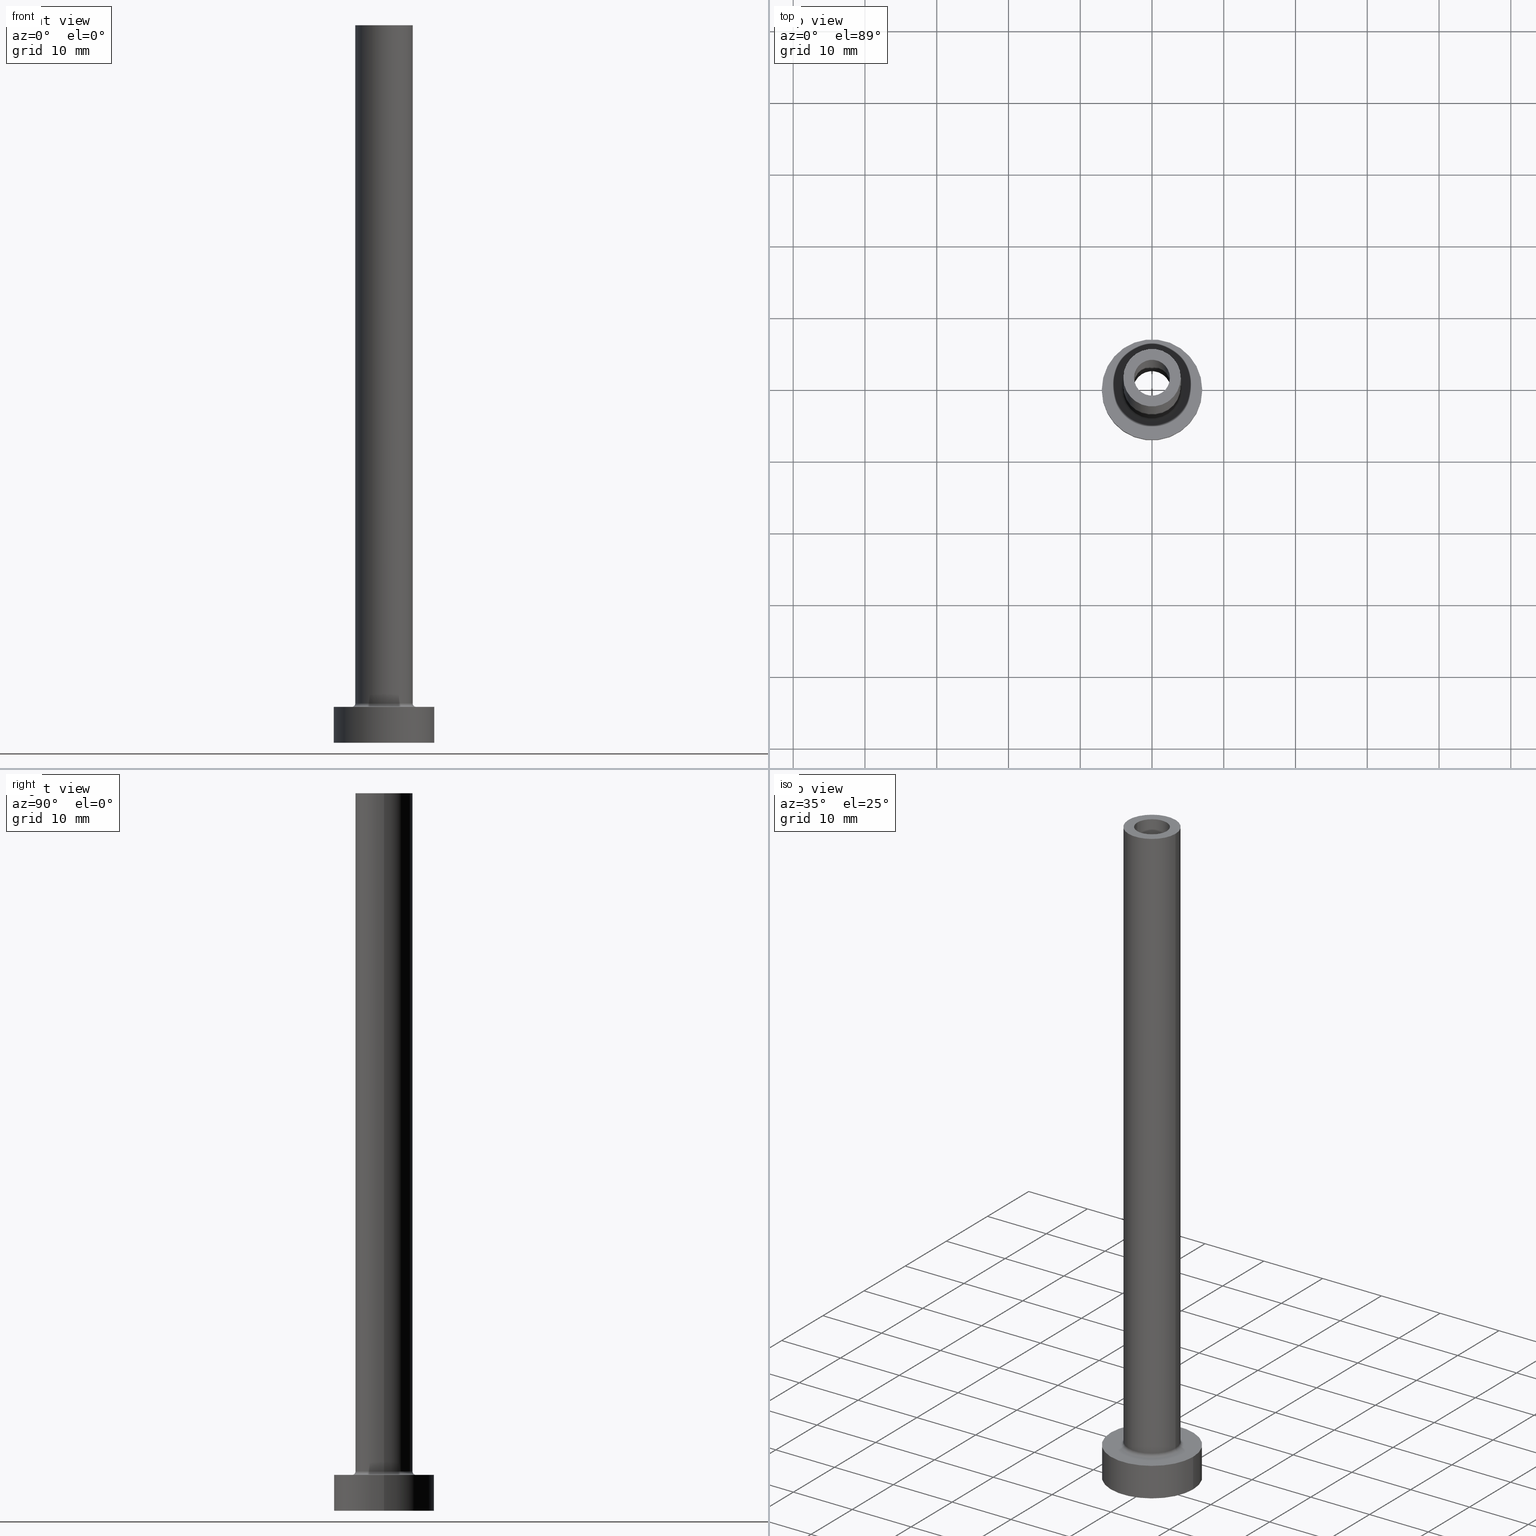
[diagram: canonical four-view strip — front | top / right | iso, engineering-drawing reading convention]
A machine part, canonical four-view strip (front | top / right | iso — engineering-drawing reading convention). The complete STEP part file that produces these views, byte-faithful:
ISO-10303-21;
HEADER;
FILE_DESCRIPTION (( 'STEP AP203' ),
    '1' );
FILE_NAME ('86c8.STEP',
    '2023-02-13T10:14:12',
    ( '' ),
    ( '' ),
    'SwSTEP 2.0',
    'SolidWorks 2019',
    '' );
FILE_SCHEMA (( 'CONFIG_CONTROL_DESIGN' ));
ENDSEC;

DATA;
#1 = DIRECTION ( 'NONE',  ( 1.000000000000000000, 0.000000000000000000, 0.000000000000000000 ) ) ;
#2 = AXIS2_PLACEMENT_3D ( 'NONE', #19, #208, #343 ) ;
#3 = EDGE_CURVE ( 'NONE', #165, #420, #121, .T. ) ;
#4 = DIRECTION ( 'NONE',  ( 1.000000000000000000, 0.000000000000000000, 0.000000000000000000 ) ) ;
#5 = LINE ( 'NONE', #232, #358 ) ;
#6 = ORIENTED_EDGE ( 'NONE', *, *, #106, .T. ) ;
#7 = AXIS2_PLACEMENT_3D ( 'NONE', #327, #429, #394 ) ;
#8 = CARTESIAN_POINT ( 'NONE',  ( 0.000000000000000000, 0.000000000000000000, 5.000000000000000000 ) ) ;
#9 = APPROVAL_DATE_TIME ( #93, #275 ) ;
#10 = VERTEX_POINT ( 'NONE', #406 ) ;
#11 = PRODUCT_DEFINITION_FORMATION_WITH_SPECIFIED_SOURCE ( 'LIBOVOLN�', '', #76, .NOT_KNOWN. ) ;
#12 = DIRECTION ( 'NONE',  ( 1.000000000000000000, 0.000000000000000000, 0.000000000000000000 ) ) ;
#13 = ORIENTED_EDGE ( 'NONE', *, *, #131, .T. ) ;
#14 = DIRECTION ( 'NONE',  ( -0.000000000000000000, -0.000000000000000000, -1.000000000000000000 ) ) ;
#15 = DIRECTION ( 'NONE',  ( 1.000000000000000000, 0.000000000000000000, 0.000000000000000000 ) ) ;
#16 = AXIS2_PLACEMENT_3D ( 'NONE', #419, #109, #72 ) ;
#17 = EDGE_CURVE ( 'NONE', #96, #338, #64, .T. ) ;
#18 = ORIENTED_EDGE ( 'NONE', *, *, #17, .F. ) ;
#19 = CARTESIAN_POINT ( 'NONE',  ( 0.000000000000000000, 0.000000000000000000, 100.0000000000000000 ) ) ;
#20 = VERTEX_POINT ( 'NONE', #375 ) ;
#21 = DIRECTION ( 'NONE',  ( 0.000000000000000000, 0.000000000000000000, 1.000000000000000000 ) ) ;
#22 = EDGE_CURVE ( 'NONE', #70, #372, #404, .T. ) ;
#23 = APPROVAL_STATUS ( 'not_yet_approved' ) ;
#24 = AXIS2_PLACEMENT_3D ( 'NONE', #301, #438, #97 ) ;
#25 = APPROVAL ( #23, 'NEUR�EN�' ) ;
#26 = CARTESIAN_POINT ( 'NONE',  ( 0.000000000000000000, 0.000000000000000000, 100.0000000000000000 ) ) ;
#27 = ORIENTED_EDGE ( 'NONE', *, *, #259, .F. ) ;
#28 = CARTESIAN_POINT ( 'NONE',  ( 0.000000000000000000, 0.000000000000000000, 100.0000000000000000 ) ) ;
#29 = ORIENTED_EDGE ( 'NONE', *, *, #67, .F. ) ;
#30 = VECTOR ( 'NONE', #63, 1000.000000000000000 ) ;
#31 = DIRECTION ( 'NONE',  ( -0.000000000000000000, -0.000000000000000000, -1.000000000000000000 ) ) ;
#32 = APPLICATION_PROTOCOL_DEFINITION ( 'international standard', 'config_control_design', 1994, #366 ) ;
#33 = ADVANCED_FACE ( 'NONE', ( #103 ), #214, .T. ) ;
#34 = CARTESIAN_POINT ( 'NONE',  ( 0.000000000000000000, 0.000000000000000000, 5.500000000000005329 ) ) ;
#35 = PRODUCT_RELATED_PRODUCT_CATEGORY ( 'detail', '', ( #76 ) ) ;
#36 = DIRECTION ( 'NONE',  ( 1.000000000000000000, 0.000000000000000000, 0.000000000000000000 ) ) ;
#37 = CIRCLE ( 'NONE', #235, 2.649999999999999911 ) ;
#38 = FACE_OUTER_BOUND ( 'NONE', #369, .T. ) ;
#39 = CIRCLE ( 'NONE', #346, 0.5000000000000004441 ) ;
#40 = EDGE_LOOP ( 'NONE', ( #319, #312, #446, #459 ) ) ;
#41 = EDGE_CURVE ( 'NONE', #228, #180, #123, .T. ) ;
#42 = DIRECTION ( 'NONE',  ( 0.000000000000000000, 0.000000000000000000, 1.000000000000000000 ) ) ;
#43 = CARTESIAN_POINT ( 'NONE',  ( -4.000000000000000000, 0.000000000000000000, 5.500000000000005329 ) ) ;
#44 = DIRECTION ( 'NONE',  ( 0.000000000000000000, 0.000000000000000000, -1.000000000000000000 ) ) ;
#45 = AXIS2_PLACEMENT_3D ( 'NONE', #355, #428, #325 ) ;
#46 = EDGE_LOOP ( 'NONE', ( #405, #86, #411, #50 ) ) ;
#47 = CARTESIAN_POINT ( 'NONE',  ( -2.649999999999999911, 0.000000000000000000, 55.00000000000000711 ) ) ;
#48 =( GEOMETRIC_REPRESENTATION_CONTEXT ( 3 ) GLOBAL_UNCERTAINTY_ASSIGNED_CONTEXT ( ( #119 ) ) GLOBAL_UNIT_ASSIGNED_CONTEXT ( ( #283, #263, #425 ) ) REPRESENTATION_CONTEXT ( 'NONE', 'WORKASPACE' ) );
#49 = APPROVAL_ROLE ( '' ) ;
#50 = ORIENTED_EDGE ( 'NONE', *, *, #393, .F. ) ;
#51 = EDGE_CURVE ( 'NONE', #165, #70, #215, .T. ) ;
#52 = DIRECTION ( 'NONE',  ( 1.000000000000000000, 0.000000000000000000, 0.000000000000000000 ) ) ;
#53 = AXIS2_PLACEMENT_3D ( 'NONE', #226, #120, #1 ) ;
#54 = DIRECTION ( 'NONE',  ( 1.000000000000000000, 0.000000000000000000, 0.000000000000000000 ) ) ;
#55 = LINE ( 'NONE', #198, #389 ) ;
#56 = AXIS2_PLACEMENT_3D ( 'NONE', #80, #271, #353 ) ;
#57 = CARTESIAN_POINT ( 'NONE',  ( 0.000000000000000000, 0.000000000000000000, 0.000000000000000000 ) ) ;
#58 = EDGE_CURVE ( 'NONE', #147, #155, #98, .T. ) ;
#59 = DIRECTION ( 'NONE',  ( 0.000000000000000000, 0.000000000000000000, 1.000000000000000000 ) ) ;
#60 = DIRECTION ( 'NONE',  ( 1.000000000000000000, 0.000000000000000000, 0.000000000000000000 ) ) ;
#61 = ADVANCED_FACE ( 'NONE', ( #117, #236 ), #251, .F. ) ;
#62 = APPROVAL_ROLE ( '' ) ;
#63 = DIRECTION ( 'NONE',  ( -0.000000000000000000, -0.000000000000000000, -1.000000000000000000 ) ) ;
#64 = CIRCLE ( 'NONE', #412, 4.500000000000000888 ) ;
#65 = EDGE_LOOP ( 'NONE', ( #29, #87 ) ) ;
#66 = FACE_BOUND ( 'NONE', #350, .T. ) ;
#67 = EDGE_CURVE ( 'NONE', #288, #440, #254, .T. ) ;
#68 = DIRECTION ( 'NONE',  ( -1.000000000000000000, 0.000000000000000000, 0.000000000000000000 ) ) ;
#69 = CALENDAR_DATE ( 2023, 13, 2 ) ;
#70 = VERTEX_POINT ( 'NONE', #258 ) ;
#71 = DIRECTION ( 'NONE',  ( 0.000000000000000000, 0.000000000000000000, 1.000000000000000000 ) ) ;
#72 = DIRECTION ( 'NONE',  ( 1.000000000000000000, 0.000000000000000000, 0.000000000000000000 ) ) ;
#73 = ORIENTED_EDGE ( 'NONE', *, *, #160, .T. ) ;
#74 = ADVANCED_FACE ( 'NONE', ( #66, #413 ), #148, .T. ) ;
#75 = VECTOR ( 'NONE', #14, 1000.000000000000000 ) ;
#76 = PRODUCT ( '86c8', '86c8', '', ( #296 ) ) ;
#77 = AXIS2_PLACEMENT_3D ( 'NONE', #211, #31, #68 ) ;
#78 = ADVANCED_FACE ( 'NONE', ( #315 ), #455, .F. ) ;
#79 = DIRECTION ( 'NONE',  ( 0.000000000000000000, 0.000000000000000000, -1.000000000000000000 ) ) ;
#80 = CARTESIAN_POINT ( 'NONE',  ( 0.000000000000000000, 0.000000000000000000, 0.000000000000000000 ) ) ;
#81 = DIRECTION ( 'NONE',  ( -1.000000000000000000, 0.000000000000000000, 0.000000000000000000 ) ) ;
#82 = CC_DESIGN_PERSON_AND_ORGANIZATION_ASSIGNMENT ( #124, #269, ( #76 ) ) ;
#83 = FACE_OUTER_BOUND ( 'NONE', #321, .T. ) ;
#84 = PERSON_AND_ORGANIZATION ( #383, #432 ) ;
#85 = DIRECTION ( 'NONE',  ( -0.000000000000000000, -0.000000000000000000, -1.000000000000000000 ) ) ;
#86 = ORIENTED_EDGE ( 'NONE', *, *, #388, .F. ) ;
#87 = ORIENTED_EDGE ( 'NONE', *, *, #231, .F. ) ;
#88 = CARTESIAN_POINT ( 'NONE',  ( 0.000000000000000000, 0.000000000000000000, 62.49533188057741739 ) ) ;
#89 = EDGE_LOOP ( 'NONE', ( #449, #130, #175, #13 ) ) ;
#90 = CARTESIAN_POINT ( 'NONE',  ( 4.000000000000000000, 4.898587196589412829E-16, 100.0000000000000000 ) ) ;
#91 = CIRCLE ( 'NONE', #2, 2.500000000000000000 ) ;
#92 = DIRECTION ( 'NONE',  ( 1.000000000000000000, 0.000000000000000000, 0.000000000000000000 ) ) ;
#93 = DATE_AND_TIME ( #200, #317 ) ;
#94 = FACE_OUTER_BOUND ( 'NONE', #46, .T. ) ;
#95 = DIRECTION ( 'NONE',  ( 0.000000000000000000, 0.000000000000000000, 1.000000000000000000 ) ) ;
#96 = VERTEX_POINT ( 'NONE', #418 ) ;
#97 = DIRECTION ( 'NONE',  ( 1.000000000000000000, 0.000000000000000000, 0.000000000000000000 ) ) ;
#98 = CIRCLE ( 'NONE', #337, 4.000000000000000000 ) ;
#99 = EDGE_CURVE ( 'NONE', #20, #238, #157, .T. ) ;
#100 = DIRECTION ( 'NONE',  ( 0.000000000000000000, 0.000000000000000000, 1.000000000000000000 ) ) ;
#101 = DIRECTION ( 'NONE',  ( 1.000000000000000000, 0.000000000000000000, -0.000000000000000000 ) ) ;
#102 = ORIENTED_EDGE ( 'NONE', *, *, #393, .T. ) ;
#103 = FACE_OUTER_BOUND ( 'NONE', #216, .T. ) ;
#104 = AXIS2_PLACEMENT_3D ( 'NONE', #376, #71, #176 ) ;
#105 = CARTESIAN_POINT ( 'NONE',  ( 0.000000000000000000, 0.000000000000000000, 55.00000000000000711 ) ) ;
#106 = EDGE_CURVE ( 'NONE', #180, #228, #261, .T. ) ;
#107 = FACE_OUTER_BOUND ( 'NONE', #437, .T. ) ;
#108 = APPROVAL_DATE_TIME ( #316, #25 ) ;
#109 = DIRECTION ( 'NONE',  ( 0.000000000000000000, 0.000000000000000000, 1.000000000000000000 ) ) ;
#110 = ORIENTED_EDGE ( 'NONE', *, *, #264, .T. ) ;
#111 = PERSON_AND_ORGANIZATION ( #383, #432 ) ;
#112 = DIRECTION ( 'NONE',  ( -0.000000000000000000, -0.000000000000000000, -1.000000000000000000 ) ) ;
#113 = ADVANCED_FACE ( 'NONE', ( #295, #83 ), #262, .T. ) ;
#114 = AXIS2_PLACEMENT_3D ( 'NONE', #141, #287, #386 ) ;
#115 = EDGE_CURVE ( 'NONE', #390, #10, #218, .T. ) ;
#116 = DIRECTION ( 'NONE',  ( 1.000000000000000000, 0.000000000000000000, 0.000000000000000000 ) ) ;
#117 = FACE_BOUND ( 'NONE', #260, .T. ) ;
#118 = CC_DESIGN_APPROVAL ( #25, ( #199 ) ) ;
#119 = UNCERTAINTY_MEASURE_WITH_UNIT (LENGTH_MEASURE( 1.000000000000000082E-05 ), #283, 'distance_accuracy_value', 'NONE');
#120 = DIRECTION ( 'NONE',  ( -0.000000000000000000, -0.000000000000000000, -1.000000000000000000 ) ) ;
#121 = CIRCLE ( 'NONE', #133, 7.000000000000000000 ) ;
#122 = DIRECTION ( 'NONE',  ( -0.000000000000000000, -0.000000000000000000, -1.000000000000000000 ) ) ;
#123 = CIRCLE ( 'NONE', #16, 4.000000000000000000 ) ;
#124 = PERSON_AND_ORGANIZATION ( #383, #432 ) ;
#125 = CARTESIAN_POINT ( 'NONE',  ( 4.000000000000000000, 4.898587196589412829E-16, 5.500000000000005329 ) ) ;
#126 = DIRECTION ( 'NONE',  ( 1.000000000000000000, 0.000000000000000000, -0.000000000000000000 ) ) ;
#127 = COORDINATED_UNIVERSAL_TIME_OFFSET ( 1, 0, .AHEAD. ) ;
#128 = LINE ( 'NONE', #361, #363 ) ;
#129 = DIRECTION ( 'NONE',  ( -0.000000000000000000, -0.000000000000000000, -1.000000000000000000 ) ) ;
#130 = ORIENTED_EDGE ( 'NONE', *, *, #231, .T. ) ;
#131 = EDGE_CURVE ( 'NONE', #387, #458, #313, .T. ) ;
#132 = CYLINDRICAL_SURFACE ( 'NONE', #281, 2.649999999999999911 ) ;
#133 = AXIS2_PLACEMENT_3D ( 'NONE', #447, #95, #54 ) ;
#134 = PERSON_AND_ORGANIZATION_ROLE ( 'creator' ) ;
#135 = CARTESIAN_POINT ( 'NONE',  ( 0.000000000000000000, 0.000000000000000000, 62.49533188057741739 ) ) ;
#136 = ADVANCED_FACE ( 'NONE', ( #291 ), #219, .F. ) ;
#137 = CALENDAR_DATE ( 2023, 13, 2 ) ;
#138 = ORIENTED_EDGE ( 'NONE', *, *, #143, .F. ) ;
#139 = AXIS2_PLACEMENT_3D ( 'NONE', #158, #357, #36 ) ;
#140 = CC_DESIGN_PERSON_AND_ORGANIZATION_ASSIGNMENT ( #451, #134, ( #326 ) ) ;
#141 = CARTESIAN_POINT ( 'NONE',  ( 0.000000000000000000, 0.000000000000000000, 5.000000000000000000 ) ) ;
#142 = ADVANCED_FACE ( 'NONE', ( #38 ), #379, .F. ) ;
#143 = EDGE_CURVE ( 'NONE', #10, #20, #163, .T. ) ;
#144 = DIRECTION ( 'NONE',  ( 0.000000000000000000, 0.000000000000000000, 1.000000000000000000 ) ) ;
#145 = CLOSED_SHELL ( 'NONE', ( #78, #187, #142, #454, #33, #431, #113, #352, #444, #74, #257, #433, #61, #136 ) ) ;
#146 = ORIENTED_EDGE ( 'NONE', *, *, #303, .T. ) ;
#147 = VERTEX_POINT ( 'NONE', #43 ) ;
#148 = PLANE ( 'NONE',  #183 ) ;
#149 = EDGE_CURVE ( 'NONE', #390, #238, #297, .T. ) ;
#150 = CARTESIAN_POINT ( 'NONE',  ( 0.000000000000000000, 0.000000000000000000, 100.0000000000000000 ) ) ;
#151 = ORIENTED_EDGE ( 'NONE', *, *, #17, .T. ) ;
#152 = EDGE_LOOP ( 'NONE', ( #205, #253, #168, #308 ) ) ;
#153 = DIRECTION ( 'NONE',  ( 1.000000000000000000, 0.000000000000000000, 0.000000000000000000 ) ) ;
#154 = ORIENTED_EDGE ( 'NONE', *, *, #41, .T. ) ;
#155 = VERTEX_POINT ( 'NONE', #125 ) ;
#156 = DIRECTION ( 'NONE',  ( 0.000000000000000000, 0.000000000000000000, 1.000000000000000000 ) ) ;
#157 = CIRCLE ( 'NONE', #396, 2.500000000000000000 ) ;
#158 = CARTESIAN_POINT ( 'NONE',  ( 0.000000000000000000, 0.000000000000000000, 100.0000000000000000 ) ) ;
#159 = DIRECTION ( 'NONE',  ( 0.000000000000000000, -1.000000000000000000, 0.000000000000000000 ) ) ;
#160 = EDGE_CURVE ( 'NONE', #420, #372, #128, .T. ) ;
#161 = DIRECTION ( 'NONE',  ( 1.000000000000000000, 0.000000000000000000, 0.000000000000000000 ) ) ;
#162 = CARTESIAN_POINT ( 'NONE',  ( -7.000000000000000000, 0.000000000000000000, 0.000000000000000000 ) ) ;
#163 = LINE ( 'NONE', #293, #349 ) ;
#164 = DIRECTION ( 'NONE',  ( 0.000000000000000000, 0.000000000000000000, -1.000000000000000000 ) ) ;
#165 = VERTEX_POINT ( 'NONE', #190 ) ;
#166 = SECURITY_CLASSIFICATION_LEVEL ( 'unclassified' ) ;
#167 = LOCAL_TIME ( 11, 14, 12.00000000000000000, #237 ) ;
#168 = ORIENTED_EDGE ( 'NONE', *, *, #259, .T. ) ;
#169 = CARTESIAN_POINT ( 'NONE',  ( 0.000000000000000000, 0.000000000000000000, 55.00000000000000711 ) ) ;
#170 = APPROVAL ( #360, 'NEUR�EN�' ) ;
#171 = CARTESIAN_POINT ( 'NONE',  ( -4.500000000000000888, 5.510910596163088569E-16, 5.000000000000002665 ) ) ;
#172 = CIRCLE ( 'NONE', #417, 4.000000000000000000 ) ;
#173 = EDGE_LOOP ( 'NONE', ( #151, #102 ) ) ;
#174 = LINE ( 'NONE', #90, #75 ) ;
#175 = ORIENTED_EDGE ( 'NONE', *, *, #416, .T. ) ;
#176 = DIRECTION ( 'NONE',  ( 1.000000000000000000, 0.000000000000000000, -0.000000000000000000 ) ) ;
#177 = PLANE ( 'NONE',  #206 ) ;
#178 = COORDINATED_UNIVERSAL_TIME_OFFSET ( 1, 0, .AHEAD. ) ;
#179 = LOCAL_TIME ( 11, 14, 12.00000000000000000, #127 ) ;
#180 = VERTEX_POINT ( 'NONE', #329 ) ;
#181 = DIRECTION ( 'NONE',  ( 0.000000000000000000, 0.000000000000000000, -1.000000000000000000 ) ) ;
#182 = ORIENTED_EDGE ( 'NONE', *, *, #264, .F. ) ;
#183 = AXIS2_PLACEMENT_3D ( 'NONE', #26, #144, #101 ) ;
#184 = DIRECTION ( 'NONE',  ( -0.000000000000000000, -0.000000000000000000, -1.000000000000000000 ) ) ;
#185 = ADVANCED_BREP_SHAPE_REPRESENTATION ( '86c8', ( #278, #56 ), #48 ) ;
#186 = EDGE_LOOP ( 'NONE', ( #314, #322, #302, #213 ) ) ;
#187 = ADVANCED_FACE ( 'NONE', ( #450 ), #132, .F. ) ;
#188 = CARTESIAN_POINT ( 'NONE',  ( 0.000000000000000000, 0.000000000000000000, 0.000000000000000000 ) ) ;
#189 = CC_DESIGN_DATE_AND_TIME_ASSIGNMENT ( #196, #368, ( #326 ) ) ;
#190 = CARTESIAN_POINT ( 'NONE',  ( 7.000000000000000000, 8.572527594031473190E-16, 5.000000000000000000 ) ) ;
#191 = DIRECTION ( 'NONE',  ( -1.000000000000000000, 0.000000000000000000, 0.000000000000000000 ) ) ;
#192 = TOROIDAL_SURFACE ( 'NONE', #24, 4.500000000000000888, 0.5000000000000000000 ) ;
#193 = COORDINATED_UNIVERSAL_TIME_OFFSET ( 1, 0, .AHEAD. ) ;
#194 = EDGE_LOOP ( 'NONE', ( #340, #381, #73, #242 ) ) ;
#195 = CC_DESIGN_PERSON_AND_ORGANIZATION_ASSIGNMENT ( #273, #401, ( #199 ) ) ;
#196 = DATE_AND_TIME ( #137, #246 ) ;
#197 = EDGE_LOOP ( 'NONE', ( #138, #110, #267, #335 ) ) ;
#198 = CARTESIAN_POINT ( 'NONE',  ( 2.649999999999999911, 3.245314017740485962E-16, 62.49533188057741739 ) ) ;
#199 = SECURITY_CLASSIFICATION ( '', '', #166 ) ;
#200 = CALENDAR_DATE ( 2023, 13, 2 ) ;
#201 = ORIENTED_EDGE ( 'NONE', *, *, #415, .T. ) ;
#202 = DIRECTION ( 'NONE',  ( 0.000000000000000000, 0.000000000000000000, -1.000000000000000000 ) ) ;
#203 = AXIS2_PLACEMENT_3D ( 'NONE', #28, #181, #285 ) ;
#204 = PERSON_AND_ORGANIZATION_ROLE ( 'design_supplier' ) ;
#205 = ORIENTED_EDGE ( 'NONE', *, *, #67, .T. ) ;
#206 = AXIS2_PLACEMENT_3D ( 'NONE', #318, #356, #126 ) ;
#207 = ORIENTED_EDGE ( 'NONE', *, *, #282, .T. ) ;
#208 = DIRECTION ( 'NONE',  ( 0.000000000000000000, 0.000000000000000000, 1.000000000000000000 ) ) ;
#209 = AXIS2_PLACEMENT_3D ( 'NONE', #290, #359, #265 ) ;
#210 = CARTESIAN_POINT ( 'NONE',  ( -2.500000000000000000, 0.000000000000000000, 55.00000000000000711 ) ) ;
#211 = CARTESIAN_POINT ( 'NONE',  ( 0.000000000000000000, 0.000000000000000000, 100.0000000000000000 ) ) ;
#212 = VECTOR ( 'NONE', #164, 1000.000000000000000 ) ;
#213 = ORIENTED_EDGE ( 'NONE', *, *, #149, .F. ) ;
#214 = CYLINDRICAL_SURFACE ( 'NONE', #114, 7.000000000000000000 ) ;
#215 = LINE ( 'NONE', #378, #30 ) ;
#216 = EDGE_LOOP ( 'NONE', ( #439, #348, #306, #279 ) ) ;
#217 = CC_DESIGN_DATE_AND_TIME_ASSIGNMENT ( #380, #284, ( #199 ) ) ;
#218 = CIRCLE ( 'NONE', #139, 2.500000000000000000 ) ;
#219 = CYLINDRICAL_SURFACE ( 'NONE', #330, 2.500000000000000000 ) ;
#220 = EDGE_CURVE ( 'NONE', #372, #70, #243, .T. ) ;
#221 = ORIENTED_EDGE ( 'NONE', *, *, #414, .F. ) ;
#222 = DIRECTION ( 'NONE',  ( 0.000000000000000000, 0.000000000000000000, 1.000000000000000000 ) ) ;
#223 = DIRECTION ( 'NONE',  ( 1.000000000000000000, 0.000000000000000000, 0.000000000000000000 ) ) ;
#224 = EDGE_CURVE ( 'NONE', #228, #155, #174, .T. ) ;
#225 = CIRCLE ( 'NONE', #53, 4.500000000000000888 ) ;
#226 = CARTESIAN_POINT ( 'NONE',  ( 0.000000000000000000, 0.000000000000000000, 5.000000000000000000 ) ) ;
#227 = DIRECTION ( 'NONE',  ( 0.000000000000000000, 0.000000000000000000, -1.000000000000000000 ) ) ;
#228 = VERTEX_POINT ( 'NONE', #441 ) ;
#229 = CARTESIAN_POINT ( 'NONE',  ( 0.000000000000000000, 0.000000000000000000, 100.0000000000000000 ) ) ;
#230 = DIRECTION ( 'NONE',  ( 0.000000000000000000, 0.000000000000000000, -1.000000000000000000 ) ) ;
#231 = EDGE_CURVE ( 'NONE', #440, #288, #37, .T. ) ;
#232 = CARTESIAN_POINT ( 'NONE',  ( -4.000000000000000000, 0.000000000000000000, 100.0000000000000000 ) ) ;
#233 = PERSON_AND_ORGANIZATION_ROLE ( 'creator' ) ;
#234 = ORIENTED_EDGE ( 'NONE', *, *, #224, .F. ) ;
#235 = AXIS2_PLACEMENT_3D ( 'NONE', #169, #373, #309 ) ;
#236 = FACE_OUTER_BOUND ( 'NONE', #65, .T. ) ;
#237 = COORDINATED_UNIVERSAL_TIME_OFFSET ( 1, 0, .AHEAD. ) ;
#238 = VERTEX_POINT ( 'NONE', #210 ) ;
#239 = DIRECTION ( 'NONE',  ( -1.000000000000000000, 1.224646799147351482E-16, 0.000000000000000000 ) ) ;
#240 = CARTESIAN_POINT ( 'NONE',  ( 0.000000000000000000, 0.000000000000000000, 5.000000000000000000 ) ) ;
#241 = PERSON_AND_ORGANIZATION ( #383, #432 ) ;
#242 = ORIENTED_EDGE ( 'NONE', *, *, #220, .T. ) ;
#243 = CIRCLE ( 'NONE', #423, 7.000000000000000000 ) ;
#244 = ORIENTED_EDGE ( 'NONE', *, *, #58, .F. ) ;
#245 = CARTESIAN_POINT ( 'NONE',  ( 0.000000000000000000, 0.000000000000000000, 0.000000000000000000 ) ) ;
#246 = LOCAL_TIME ( 11, 14, 12.00000000000000000, #307 ) ;
#247 = DIRECTION ( 'NONE',  ( -0.000000000000000000, -0.000000000000000000, -1.000000000000000000 ) ) ;
#248 = EDGE_CURVE ( 'NONE', #440, #458, #55, .T. ) ;
#249 = DIRECTION ( 'NONE',  ( 0.000000000000000000, 0.000000000000000000, -1.000000000000000000 ) ) ;
#250 = CC_DESIGN_SECURITY_CLASSIFICATION ( #199, ( #11 ) ) ;
#251 = PLANE ( 'NONE',  #104 ) ;
#252 = APPLICATION_CONTEXT ( 'configuration controlled 3d designs of mechanical parts and assemblies' ) ;
#253 = ORIENTED_EDGE ( 'NONE', *, *, #248, .T. ) ;
#254 = CIRCLE ( 'NONE', #374, 2.649999999999999911 ) ;
#255 = CYLINDRICAL_SURFACE ( 'NONE', #77, 4.000000000000000000 ) ;
#256 = CARTESIAN_POINT ( 'NONE',  ( 0.000000000000000000, 0.000000000000000000, 5.500000000000005329 ) ) ;
#257 = ADVANCED_FACE ( 'NONE', ( #94 ), #192, .F. ) ;
#258 = CARTESIAN_POINT ( 'NONE',  ( 7.000000000000000000, 8.572527594031473190E-16, 0.000000000000000000 ) ) ;
#259 = EDGE_CURVE ( 'NONE', #458, #387, #395, .T. ) ;
#260 = EDGE_LOOP ( 'NONE', ( #201, #345 ) ) ;
#261 = CIRCLE ( 'NONE', #266, 4.000000000000000000 ) ;
#262 = PLANE ( 'NONE',  #45 ) ;
#263 =( NAMED_UNIT ( * ) PLANE_ANGLE_UNIT ( ) SI_UNIT ( $, .RADIAN. ) );
#264 = EDGE_CURVE ( 'NONE', #10, #390, #91, .T. ) ;
#265 = DIRECTION ( 'NONE',  ( 1.000000000000000000, 0.000000000000000000, 0.000000000000000000 ) ) ;
#266 = AXIS2_PLACEMENT_3D ( 'NONE', #229, #156, #223 ) ;
#267 = ORIENTED_EDGE ( 'NONE', *, *, #149, .T. ) ;
#268 = CARTESIAN_POINT ( 'NONE',  ( -2.649999999999999911, 0.000000000000000000, 0.000000000000000000 ) ) ;
#269 = PERSON_AND_ORGANIZATION_ROLE ( 'design_owner' ) ;
#270 = CARTESIAN_POINT ( 'NONE',  ( -2.500000000000000000, 0.000000000000000000, 100.0000000000000000 ) ) ;
#271 = DIRECTION ( 'NONE',  ( 0.000000000000000000, 0.000000000000000000, 1.000000000000000000 ) ) ;
#272 = FACE_OUTER_BOUND ( 'NONE', #194, .T. ) ;
#273 = PERSON_AND_ORGANIZATION ( #383, #432 ) ;
#274 = EDGE_LOOP ( 'NONE', ( #300, #408 ) ) ;
#275 = APPROVAL ( #436, 'NEUR�EN�' ) ;
#276 = CIRCLE ( 'NONE', #443, 0.5000000000000004441 ) ;
#277 = EDGE_LOOP ( 'NONE', ( #311, #27 ) ) ;
#278 = MANIFOLD_SOLID_BREP ( 'Odebrat vysunut�m4', #145 ) ;
#279 = ORIENTED_EDGE ( 'NONE', *, *, #160, .F. ) ;
#280 = ORIENTED_EDGE ( 'NONE', *, *, #58, .T. ) ;
#281 = AXIS2_PLACEMENT_3D ( 'NONE', #135, #249, #370 ) ;
#282 = EDGE_CURVE ( 'NONE', #147, #338, #276, .T. ) ;
#283 =( LENGTH_UNIT ( ) NAMED_UNIT ( * ) SI_UNIT ( .MILLI., .METRE. ) );
#284 = DATE_TIME_ROLE ( 'classification_date' ) ;
#285 = DIRECTION ( 'NONE',  ( -1.000000000000000000, 0.000000000000000000, 0.000000000000000000 ) ) ;
#286 = CIRCLE ( 'NONE', #304, 7.000000000000000000 ) ;
#287 = DIRECTION ( 'NONE',  ( -0.000000000000000000, -0.000000000000000000, -1.000000000000000000 ) ) ;
#288 = VERTEX_POINT ( 'NONE', #47 ) ;
#289 = AXIS2_PLACEMENT_3D ( 'NONE', #245, #336, #52 ) ;
#290 = CARTESIAN_POINT ( 'NONE',  ( 0.000000000000000000, 0.000000000000000000, 55.00000000000000711 ) ) ;
#291 = FACE_OUTER_BOUND ( 'NONE', #197, .T. ) ;
#292 = CARTESIAN_POINT ( 'NONE',  ( -7.000000000000000000, 0.000000000000000000, 5.000000000000000000 ) ) ;
#293 = CARTESIAN_POINT ( 'NONE',  ( 2.500000000000000000, 3.061616997868382648E-16, 100.0000000000000000 ) ) ;
#294 = ORIENTED_EDGE ( 'NONE', *, *, #3, .T. ) ;
#295 = FACE_BOUND ( 'NONE', #173, .T. ) ;
#296 = MECHANICAL_CONTEXT ( 'NONE', #366, 'mechanical' ) ;
#297 = LINE ( 'NONE', #430, #212 ) ;
#298 = APPROVAL_ROLE ( '' ) ;
#299 = CYLINDRICAL_SURFACE ( 'NONE', #323, 7.000000000000000000 ) ;
#300 = ORIENTED_EDGE ( 'NONE', *, *, #220, .F. ) ;
#301 = CARTESIAN_POINT ( 'NONE',  ( 0.000000000000000000, 0.000000000000000000, 5.500000000000005329 ) ) ;
#302 = ORIENTED_EDGE ( 'NONE', *, *, #415, .F. ) ;
#303 = EDGE_CURVE ( 'NONE', #420, #165, #286, .T. ) ;
#304 = AXIS2_PLACEMENT_3D ( 'NONE', #334, #21, #15 ) ;
#305 = DESIGN_CONTEXT ( 'detailed design', #252, 'design' ) ;
#306 = ORIENTED_EDGE ( 'NONE', *, *, #22, .T. ) ;
#307 = COORDINATED_UNIVERSAL_TIME_OFFSET ( 1, 0, .AHEAD. ) ;
#308 = ORIENTED_EDGE ( 'NONE', *, *, #416, .F. ) ;
#309 = DIRECTION ( 'NONE',  ( 1.000000000000000000, 0.000000000000000000, 0.000000000000000000 ) ) ;
#310 = DATE_AND_TIME ( #445, #179 ) ;
#311 = ORIENTED_EDGE ( 'NONE', *, *, #131, .F. ) ;
#312 = ORIENTED_EDGE ( 'NONE', *, *, #224, .T. ) ;
#313 = CIRCLE ( 'NONE', #453, 2.649999999999999911 ) ;
#314 = ORIENTED_EDGE ( 'NONE', *, *, #115, .T. ) ;
#315 = FACE_OUTER_BOUND ( 'NONE', #186, .T. ) ;
#316 = DATE_AND_TIME ( #342, #435 ) ;
#317 = LOCAL_TIME ( 11, 14, 12.00000000000000000, #193 ) ;
#318 = CARTESIAN_POINT ( 'NONE',  ( 0.000000000000000000, 0.000000000000000000, 0.000000000000000000 ) ) ;
#319 = ORIENTED_EDGE ( 'NONE', *, *, #41, .F. ) ;
#320 = PRODUCT_DEFINITION_SHAPE ( 'NONE', 'NONE',  #326 ) ;
#321 = EDGE_LOOP ( 'NONE', ( #146, #294 ) ) ;
#322 = ORIENTED_EDGE ( 'NONE', *, *, #143, .T. ) ;
#323 = AXIS2_PLACEMENT_3D ( 'NONE', #8, #129, #362 ) ;
#324 = DIRECTION ( 'NONE',  ( -1.000000000000000000, 0.000000000000000000, 0.000000000000000000 ) ) ;
#325 = DIRECTION ( 'NONE',  ( 1.000000000000000000, 0.000000000000000000, -0.000000000000000000 ) ) ;
#326 = PRODUCT_DEFINITION ( 'NEZN�M�', '', #11, #305 ) ;
#327 = CARTESIAN_POINT ( 'NONE',  ( 0.000000000000000000, 0.000000000000000000, 5.500000000000005329 ) ) ;
#328 = CARTESIAN_POINT ( 'NONE',  ( 0.000000000000000000, 0.000000000000000000, 100.0000000000000000 ) ) ;
#329 = CARTESIAN_POINT ( 'NONE',  ( -4.000000000000000000, 0.000000000000000000, 100.0000000000000000 ) ) ;
#330 = AXIS2_PLACEMENT_3D ( 'NONE', #328, #426, #81 ) ;
#331 = CC_DESIGN_APPROVAL ( #170, ( #326 ) ) ;
#332 = CARTESIAN_POINT ( 'NONE',  ( 2.649999999999999911, 3.245314017740485962E-16, 55.00000000000000711 ) ) ;
#333 = PERSON_AND_ORGANIZATION ( #383, #432 ) ;
#334 = CARTESIAN_POINT ( 'NONE',  ( 0.000000000000000000, 0.000000000000000000, 5.000000000000000000 ) ) ;
#335 = ORIENTED_EDGE ( 'NONE', *, *, #99, .F. ) ;
#336 = DIRECTION ( 'NONE',  ( -0.000000000000000000, -0.000000000000000000, -1.000000000000000000 ) ) ;
#337 = AXIS2_PLACEMENT_3D ( 'NONE', #256, #347, #4 ) ;
#338 = VERTEX_POINT ( 'NONE', #171 ) ;
#339 = FACE_BOUND ( 'NONE', #277, .T. ) ;
#340 = ORIENTED_EDGE ( 'NONE', *, *, #51, .F. ) ;
#341 = DIRECTION ( 'NONE',  ( 1.224646799147353207E-16, 1.000000000000000000, -0.000000000000000000 ) ) ;
#342 = CALENDAR_DATE ( 2023, 13, 2 ) ;
#343 = DIRECTION ( 'NONE',  ( 1.000000000000000000, 0.000000000000000000, 0.000000000000000000 ) ) ;
#344 = CYLINDRICAL_SURFACE ( 'NONE', #448, 4.000000000000000000 ) ;
#345 = ORIENTED_EDGE ( 'NONE', *, *, #99, .T. ) ;
#346 = AXIS2_PLACEMENT_3D ( 'NONE', #398, #159, #230 ) ;
#347 = DIRECTION ( 'NONE',  ( 0.000000000000000000, 0.000000000000000000, 1.000000000000000000 ) ) ;
#348 = ORIENTED_EDGE ( 'NONE', *, *, #51, .T. ) ;
#349 = VECTOR ( 'NONE', #227, 1000.000000000000000 ) ;
#350 = EDGE_LOOP ( 'NONE', ( #382, #182 ) ) ;
#351 = EDGE_LOOP ( 'NONE', ( #6, #154 ) ) ;
#352 = ADVANCED_FACE ( 'NONE', ( #339, #422 ), #177, .F. ) ;
#353 = DIRECTION ( 'NONE',  ( 1.000000000000000000, 0.000000000000000000, 0.000000000000000000 ) ) ;
#354 = CC_DESIGN_PERSON_AND_ORGANIZATION_ASSIGNMENT ( #371, #204, ( #11 ) ) ;
#355 = CARTESIAN_POINT ( 'NONE',  ( 0.000000000000000000, 0.000000000000000000, 5.000000000000000000 ) ) ;
#356 = DIRECTION ( 'NONE',  ( 0.000000000000000000, 0.000000000000000000, 1.000000000000000000 ) ) ;
#357 = DIRECTION ( 'NONE',  ( 0.000000000000000000, 0.000000000000000000, 1.000000000000000000 ) ) ;
#358 = VECTOR ( 'NONE', #122, 1000.000000000000000 ) ;
#359 = DIRECTION ( 'NONE',  ( 0.000000000000000000, 0.000000000000000000, 1.000000000000000000 ) ) ;
#360 = APPROVAL_STATUS ( 'not_yet_approved' ) ;
#361 = CARTESIAN_POINT ( 'NONE',  ( -7.000000000000000000, 0.000000000000000000, 5.000000000000000000 ) ) ;
#362 = DIRECTION ( 'NONE',  ( -1.000000000000000000, 0.000000000000000000, 0.000000000000000000 ) ) ;
#363 = VECTOR ( 'NONE', #85, 1000.000000000000000 ) ;
#364 = ORIENTED_EDGE ( 'NONE', *, *, #106, .F. ) ;
#365 = EDGE_CURVE ( 'NONE', #180, #147, #5, .T. ) ;
#366 = APPLICATION_CONTEXT ( 'configuration controlled 3d designs of mechanical parts and assemblies' ) ;
#367 = APPROVAL_PERSON_ORGANIZATION ( #84, #170, #298 ) ;
#368 = DATE_TIME_ROLE ( 'creation_date' ) ;
#369 = EDGE_LOOP ( 'NONE', ( #244, #207, #18, #221 ) ) ;
#370 = DIRECTION ( 'NONE',  ( -1.000000000000000000, 0.000000000000000000, 0.000000000000000000 ) ) ;
#371 = PERSON_AND_ORGANIZATION ( #383, #432 ) ;
#372 = VERTEX_POINT ( 'NONE', #162 ) ;
#373 = DIRECTION ( 'NONE',  ( 0.000000000000000000, 0.000000000000000000, 1.000000000000000000 ) ) ;
#374 = AXIS2_PLACEMENT_3D ( 'NONE', #105, #59, #153 ) ;
#375 = CARTESIAN_POINT ( 'NONE',  ( 2.500000000000000000, 3.061616997868382648E-16, 55.00000000000000711 ) ) ;
#376 = CARTESIAN_POINT ( 'NONE',  ( 0.000000000000000000, 0.000000000000000000, 55.00000000000000711 ) ) ;
#377 = DIRECTION ( 'NONE',  ( 0.000000000000000000, 0.000000000000000000, 1.000000000000000000 ) ) ;
#378 = CARTESIAN_POINT ( 'NONE',  ( 7.000000000000000000, 8.572527594031473190E-16, 5.000000000000000000 ) ) ;
#379 = TOROIDAL_SURFACE ( 'NONE', #7, 4.500000000000000888, 0.5000000000000000000 ) ;
#380 = DATE_AND_TIME ( #69, #167 ) ;
#381 = ORIENTED_EDGE ( 'NONE', *, *, #303, .F. ) ;
#382 = ORIENTED_EDGE ( 'NONE', *, *, #115, .F. ) ;
#383 = PERSON ( 'NEUR�EN�', 'NEUR�EN�', 'NEUR�EN�', ('NEUR�EN�'), ('NEUR�EN�'), ('NEUR�EN�') ) ;
#384 = CARTESIAN_POINT ( 'NONE',  ( 0.000000000000000000, 0.000000000000000000, 55.00000000000000711 ) ) ;
#385 = AXIS2_PLACEMENT_3D ( 'NONE', #88, #44, #191 ) ;
#386 = DIRECTION ( 'NONE',  ( -1.000000000000000000, 0.000000000000000000, 0.000000000000000000 ) ) ;
#387 = VERTEX_POINT ( 'NONE', #268 ) ;
#388 = EDGE_CURVE ( 'NONE', #155, #147, #172, .T. ) ;
#389 = VECTOR ( 'NONE', #202, 1000.000000000000000 ) ;
#390 = VERTEX_POINT ( 'NONE', #270 ) ;
#391 = CARTESIAN_POINT ( 'NONE',  ( -2.649999999999999911, 0.000000000000000000, 62.49533188057741739 ) ) ;
#392 = LINE ( 'NONE', #391, #460 ) ;
#393 = EDGE_CURVE ( 'NONE', #338, #96, #225, .T. ) ;
#394 = DIRECTION ( 'NONE',  ( 1.000000000000000000, 0.000000000000000000, 0.000000000000000000 ) ) ;
#395 = CIRCLE ( 'NONE', #289, 2.649999999999999911 ) ;
#396 = AXIS2_PLACEMENT_3D ( 'NONE', #384, #222, #397 ) ;
#397 = DIRECTION ( 'NONE',  ( 1.000000000000000000, 0.000000000000000000, 0.000000000000000000 ) ) ;
#398 = CARTESIAN_POINT ( 'NONE',  ( 4.500000000000000888, 0.000000000000000000, 5.500000000000005329 ) ) ;
#399 = APPLICATION_PROTOCOL_DEFINITION ( 'international standard', 'config_control_design', 1994, #252 ) ;
#400 = CYLINDRICAL_SURFACE ( 'NONE', #385, 2.649999999999999911 ) ;
#401 = PERSON_AND_ORGANIZATION_ROLE ( 'classification_officer' ) ;
#402 = ORIENTED_EDGE ( 'NONE', *, *, #365, .T. ) ;
#403 = CARTESIAN_POINT ( 'NONE',  ( -4.500000000000000888, 5.510910596163089556E-16, 5.500000000000005329 ) ) ;
#404 = CIRCLE ( 'NONE', #456, 7.000000000000000000 ) ;
#405 = ORIENTED_EDGE ( 'NONE', *, *, #282, .F. ) ;
#406 = CARTESIAN_POINT ( 'NONE',  ( 2.500000000000000000, 3.061616997868382648E-16, 100.0000000000000000 ) ) ;
#407 = APPROVAL_DATE_TIME ( #310, #170 ) ;
#408 = ORIENTED_EDGE ( 'NONE', *, *, #22, .F. ) ;
#409 = CARTESIAN_POINT ( 'NONE',  ( 0.000000000000000000, 0.000000000000000000, 0.000000000000000000 ) ) ;
#410 = CC_DESIGN_APPROVAL ( #275, ( #11 ) ) ;
#411 = ORIENTED_EDGE ( 'NONE', *, *, #414, .T. ) ;
#412 = AXIS2_PLACEMENT_3D ( 'NONE', #240, #247, #92 ) ;
#413 = FACE_OUTER_BOUND ( 'NONE', #351, .T. ) ;
#414 = EDGE_CURVE ( 'NONE', #155, #96, #39, .T. ) ;
#415 = EDGE_CURVE ( 'NONE', #238, #20, #424, .T. ) ;
#416 = EDGE_CURVE ( 'NONE', #288, #387, #392, .T. ) ;
#417 = AXIS2_PLACEMENT_3D ( 'NONE', #34, #42, #116 ) ;
#418 = CARTESIAN_POINT ( 'NONE',  ( 4.500000000000000888, 0.000000000000000000, 5.000000000000002665 ) ) ;
#419 = CARTESIAN_POINT ( 'NONE',  ( 0.000000000000000000, 0.000000000000000000, 100.0000000000000000 ) ) ;
#420 = VERTEX_POINT ( 'NONE', #292 ) ;
#421 = APPROVAL_PERSON_ORGANIZATION ( #111, #25, #62 ) ;
#422 = FACE_OUTER_BOUND ( 'NONE', #274, .T. ) ;
#423 = AXIS2_PLACEMENT_3D ( 'NONE', #409, #377, #60 ) ;
#424 = CIRCLE ( 'NONE', #209, 2.500000000000000000 ) ;
#425 =( NAMED_UNIT ( * ) SI_UNIT ( $, .STERADIAN. ) SOLID_ANGLE_UNIT ( ) );
#426 = DIRECTION ( 'NONE',  ( 0.000000000000000000, 0.000000000000000000, -1.000000000000000000 ) ) ;
#427 = APPROVAL_PERSON_ORGANIZATION ( #333, #275, #49 ) ;
#428 = DIRECTION ( 'NONE',  ( 0.000000000000000000, 0.000000000000000000, 1.000000000000000000 ) ) ;
#429 = DIRECTION ( 'NONE',  ( 0.000000000000000000, 0.000000000000000000, 1.000000000000000000 ) ) ;
#430 = CARTESIAN_POINT ( 'NONE',  ( -2.500000000000000000, 0.000000000000000000, 100.0000000000000000 ) ) ;
#431 = ADVANCED_FACE ( 'NONE', ( #272 ), #299, .T. ) ;
#432 = ORGANIZATION ( 'NEUR�EN�', 'NEUR�EN�', '' ) ;
#433 = ADVANCED_FACE ( 'NONE', ( #434 ), #400, .F. ) ;
#434 = FACE_OUTER_BOUND ( 'NONE', #89, .T. ) ;
#435 = LOCAL_TIME ( 11, 14, 12.00000000000000000, #178 ) ;
#436 = APPROVAL_STATUS ( 'not_yet_approved' ) ;
#437 = EDGE_LOOP ( 'NONE', ( #234, #364, #402, #280 ) ) ;
#438 = DIRECTION ( 'NONE',  ( 0.000000000000000000, 0.000000000000000000, 1.000000000000000000 ) ) ;
#439 = ORIENTED_EDGE ( 'NONE', *, *, #3, .F. ) ;
#440 = VERTEX_POINT ( 'NONE', #332 ) ;
#441 = CARTESIAN_POINT ( 'NONE',  ( 4.000000000000000000, 4.898587196589412829E-16, 100.0000000000000000 ) ) ;
#442 = CC_DESIGN_PERSON_AND_ORGANIZATION_ASSIGNMENT ( #241, #233, ( #11 ) ) ;
#443 = AXIS2_PLACEMENT_3D ( 'NONE', #403, #341, #239 ) ;
#444 = ADVANCED_FACE ( 'NONE', ( #107 ), #255, .T. ) ;
#445 = CALENDAR_DATE ( 2023, 13, 2 ) ;
#446 = ORIENTED_EDGE ( 'NONE', *, *, #388, .T. ) ;
#447 = CARTESIAN_POINT ( 'NONE',  ( 0.000000000000000000, 0.000000000000000000, 5.000000000000000000 ) ) ;
#448 = AXIS2_PLACEMENT_3D ( 'NONE', #150, #184, #324 ) ;
#449 = ORIENTED_EDGE ( 'NONE', *, *, #248, .F. ) ;
#450 = FACE_OUTER_BOUND ( 'NONE', #152, .T. ) ;
#451 = PERSON_AND_ORGANIZATION ( #383, #432 ) ;
#452 = SHAPE_DEFINITION_REPRESENTATION ( #320, #185 ) ;
#453 = AXIS2_PLACEMENT_3D ( 'NONE', #188, #112, #161 ) ;
#454 = ADVANCED_FACE ( 'NONE', ( #457 ), #344, .T. ) ;
#455 = CYLINDRICAL_SURFACE ( 'NONE', #203, 2.500000000000000000 ) ;
#456 = AXIS2_PLACEMENT_3D ( 'NONE', #57, #100, #12 ) ;
#457 = FACE_OUTER_BOUND ( 'NONE', #40, .T. ) ;
#458 = VERTEX_POINT ( 'NONE', #461 ) ;
#459 = ORIENTED_EDGE ( 'NONE', *, *, #365, .F. ) ;
#460 = VECTOR ( 'NONE', #79, 1000.000000000000000 ) ;
#461 = CARTESIAN_POINT ( 'NONE',  ( 2.649999999999999911, 3.245314017740485962E-16, 0.000000000000000000 ) ) ;
ENDSEC;
END-ISO-10303-21;
